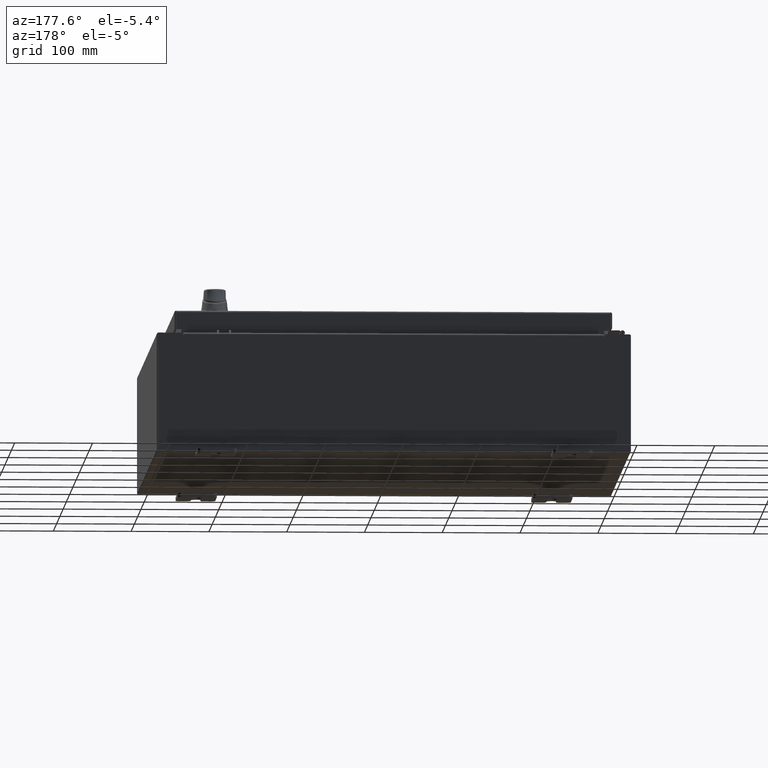
[diagram: clean part render]
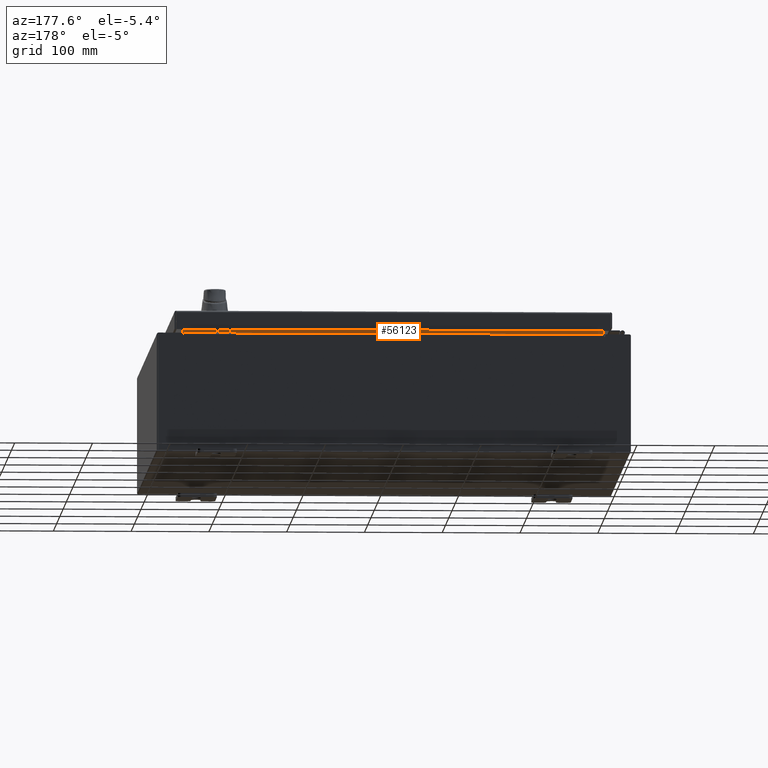
[diagram: same view with one face highlighted and labeled with its STEP entity id]
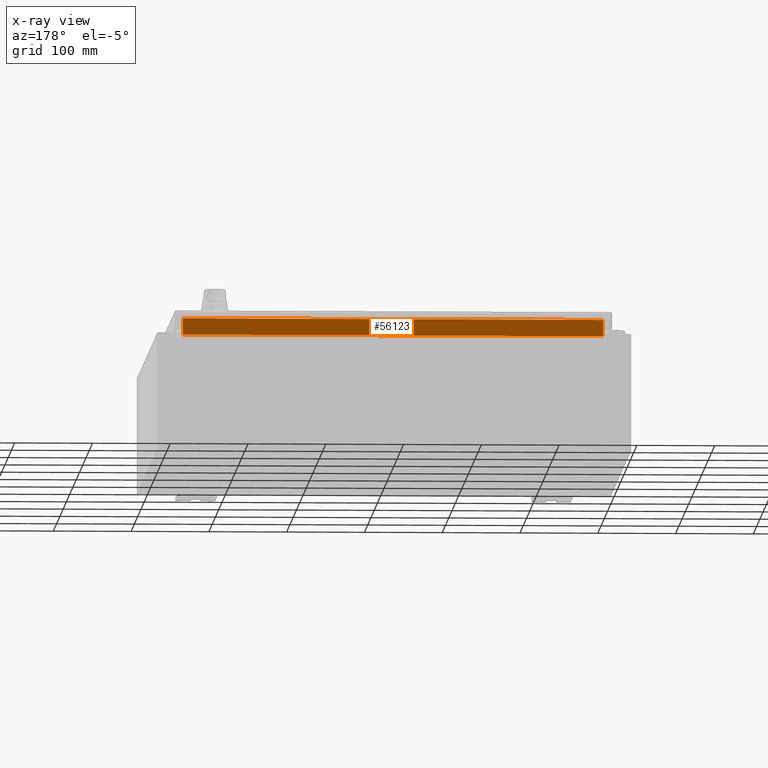
[diagram: x-ray of the same camera — body ghosted, the highlighted face saturated]
A machine part, auxiliary view. The second image highlights one B-rep face of the part: STEP entity #56123.
The next image is the same camera in x-ray: the body ghosted, the highlighted face saturated — about 0% of this face is hidden behind the body in this view.
In plain terms, the highlighted planar face has unit normal (0, 1, 0).
Its self-contained STEP definition (entity closure, byte-faithful):
#1012 = EDGE_CURVE ( 'NONE', #5252, #78064, #14660, .T. ) ;
#1335 = CARTESIAN_POINT ( 'NONE',  ( -10.63720000000000200, -1.300299999999999800, 3.013000000000005200 ) ) ;
#3723 = AXIS2_PLACEMENT_3D ( 'NONE', #32748, #41565, #102859 ) ;
#5252 = VERTEX_POINT ( 'NONE', #56878 ) ;
#5915 = VERTEX_POINT ( 'NONE', #13847 ) ;
#6230 = CARTESIAN_POINT ( 'NONE',  ( -10.63720000000000200, -1.300299999999999800, 3.000000000000005300 ) ) ;
#13847 = CARTESIAN_POINT ( 'NONE',  ( 10.63720000000000200, -1.300299999999999800, 3.837600000000005000 ) ) ;
#14660 = LINE ( 'NONE', #6230, #81871 ) ;
#16054 = ORIENTED_EDGE ( 'NONE', *, *, #73261, .F. ) ;
#32748 = CARTESIAN_POINT ( 'NONE',  ( 0.0000000000000000000, -1.300299999999999800, 0.0000000000000000000 ) ) ;
#34333 = LINE ( 'NONE', #1335, #80984 ) ;
#41408 = EDGE_CURVE ( 'NONE', #5915, #5252, #47754, .T. ) ;
#41565 = DIRECTION ( 'NONE',  ( 0.0000000000000000000, 1.000000000000000000, 0.0000000000000000000 ) ) ;
#43733 = VERTEX_POINT ( 'NONE', #98627 ) ;
#47339 = EDGE_CURVE ( 'NONE', #43733, #5915, #56571, .T. ) ;
#47754 = LINE ( 'NONE', #56464, #112168 ) ;
#53825 = DIRECTION ( 'NONE',  ( 1.000000000000000000, 0.0000000000000000000, -5.136404305013091600E-017 ) ) ;
#54215 = ORIENTED_EDGE ( 'NONE', *, *, #41408, .F. ) ;
#56123 = ADVANCED_FACE ( 'NONE', ( #111938 ), #100201, .T. ) ;
#56464 = CARTESIAN_POINT ( 'NONE',  ( 10.63720000000000200, -1.300300000000000200, 3.837600000000005000 ) ) ;
#56571 = LINE ( 'NONE', #84809, #59339 ) ;
#56878 = CARTESIAN_POINT ( 'NONE',  ( -10.63720000000000200, -1.300300000000000200, 3.837600000000005000 ) ) ;
#59339 = VECTOR ( 'NONE', #102408, 39.37007874015748100 ) ;
#65302 = DIRECTION ( 'NONE',  ( -1.000000000000000000, -0.0000000000000000000, -0.0000000000000000000 ) ) ;
#73261 = EDGE_CURVE ( 'NONE', #78064, #43733, #34333, .T. ) ;
#76376 = DIRECTION ( 'NONE',  ( -0.0000000000000000000, -0.0000000000000000000, -1.000000000000000000 ) ) ;
#76502 = EDGE_LOOP ( 'NONE', ( #80151, #54215, #84033, #16054 ) ) ;
#78064 = VERTEX_POINT ( 'NONE', #78866 ) ;
#78866 = CARTESIAN_POINT ( 'NONE',  ( -10.63720000000000400, -1.300299999999999800, 3.013000000000004800 ) ) ;
#80151 = ORIENTED_EDGE ( 'NONE', *, *, #1012, .F. ) ;
#80984 = VECTOR ( 'NONE', #53825, 39.37007874015748100 ) ;
#81871 = VECTOR ( 'NONE', #76376, 39.37007874015748100 ) ;
#84033 = ORIENTED_EDGE ( 'NONE', *, *, #47339, .F. ) ;
#84809 = CARTESIAN_POINT ( 'NONE',  ( 10.63720000000000200, -1.300299999999999800, 3.925300000000005300 ) ) ;
#98627 = CARTESIAN_POINT ( 'NONE',  ( 10.63720000000000400, -1.300299999999999800, 3.013000000000004800 ) ) ;
#100201 = PLANE ( 'NONE',  #3723 ) ;
#102408 = DIRECTION ( 'NONE',  ( -0.0000000000000000000, -0.0000000000000000000, 1.000000000000000000 ) ) ;
#102859 = DIRECTION ( 'NONE',  ( 0.0000000000000000000, -0.0000000000000000000, 1.000000000000000000 ) ) ;
#111938 = FACE_OUTER_BOUND ( 'NONE', #76502, .T. ) ;
#112168 = VECTOR ( 'NONE', #65302, 39.37007874015748100 ) ;